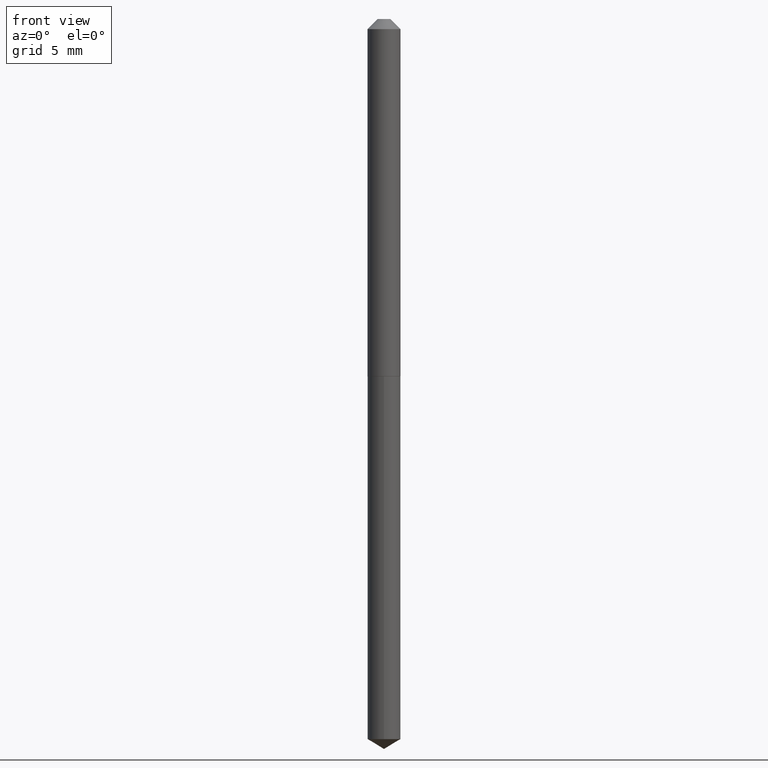
[diagram: clean part render]
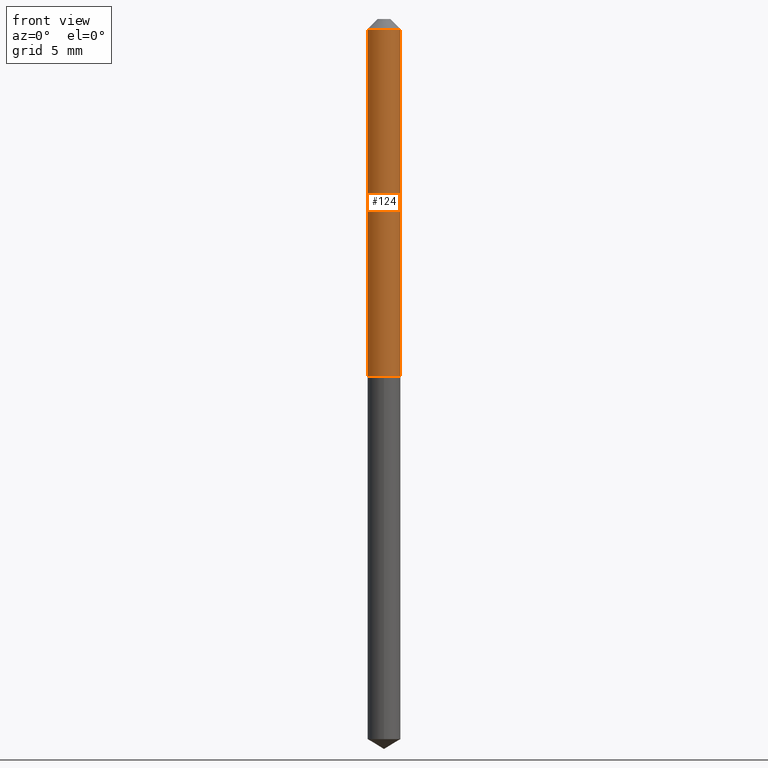
[diagram: same view with one face highlighted and labeled with its STEP entity id]
A machine part, front view. The second image highlights one B-rep face of the part: STEP entity #124.
In plain terms, the highlighted cylindrical surface (edge-blend (fillet) strip) has radius 1.2891 mm, axis along (-0, 0, 1).
Its self-contained STEP definition (entity closure, byte-faithful):
#6 = EDGE_CURVE ( 'NONE', #131, #77, #123, .T. ) ;
#19 = DIRECTION ( 'NONE',  ( 1.000000000000000000, -6.982962677686265922E-15, 4.876176775795935793E-29 ) ) ;
#30 = ORIENTED_EDGE ( 'NONE', *, *, #183, .F. ) ;
#33 = VERTEX_POINT ( 'NONE', #99 ) ;
#50 = CARTESIAN_POINT ( 'NONE',  ( 0.000000000000000000, 0.000000000000000000, 0.000000000000000000 ) ) ;
#52 = CARTESIAN_POINT ( 'NONE',  ( 0.05075000000000014222, -4.198506309958881744E-15, -1.100999999999999979 ) ) ;
#59 = CARTESIAN_POINT ( 'NONE',  ( -0.05075000000000014222, -3.483520515668050958E-15, -1.100999999999999979 ) ) ;
#60 = DIRECTION ( 'NONE',  ( -2.445468806185136597E-29, 3.491481338843145583E-15, 1.000000000000000000 ) ) ;
#73 = VERTEX_POINT ( 'NONE', #59 ) ;
#77 = VERTEX_POINT ( 'NONE', #314 ) ;
#78 = CIRCLE ( 'NONE', #338, 0.05075000000000001732 ) ;
#80 = EDGE_CURVE ( 'NONE', #33, #77, #78, .T. ) ;
#84 = DIRECTION ( 'NONE',  ( -2.445468806185136877E-29, 3.491481338843145188E-15, 1.000000000000000000 ) ) ;
#85 = AXIS2_PLACEMENT_3D ( 'NONE', #206, #108, #93 ) ;
#93 = DIRECTION ( 'NONE',  ( 1.000000000000000000, -6.982962677686270655E-15, 0.000000000000000000 ) ) ;
#99 = CARTESIAN_POINT ( 'NONE',  ( -0.05075000000000001732, -1.616014434554323559E-15, -0.03125000000000021511 ) ) ;
#108 = DIRECTION ( 'NONE',  ( -2.445468806185136597E-29, 3.491481338843145583E-15, 1.000000000000000000 ) ) ;
#123 = LINE ( 'NONE', #375, #305 ) ;
#124 = ADVANCED_FACE ( 'NONE', ( #359 ), #361, .T. ) ;
#131 = VERTEX_POINT ( 'NONE', #52 ) ;
#139 = DIRECTION ( 'NONE',  ( 1.000000000000000000, -6.982962677686265133E-15, 0.000000000000000000 ) ) ;
#140 = AXIS2_PLACEMENT_3D ( 'NONE', #50, #240, #19 ) ;
#151 = DIRECTION ( 'NONE',  ( -2.445468806185136877E-29, 3.491481338843145188E-15, 1.000000000000000000 ) ) ;
#170 = EDGE_CURVE ( 'NONE', #73, #131, #204, .T. ) ;
#183 = EDGE_CURVE ( 'NONE', #73, #33, #230, .T. ) ;
#204 = CIRCLE ( 'NONE', #85, 0.05075000000000014222 ) ;
#206 = CARTESIAN_POINT ( 'NONE',  ( 2.692461155609835411E-29, -3.844120954066303109E-15, -1.100999999999999979 ) ) ;
#215 = ORIENTED_EDGE ( 'NONE', *, *, #80, .F. ) ;
#227 = VECTOR ( 'NONE', #84, 39.37007874015748143 ) ;
#230 = LINE ( 'NONE', #350, #227 ) ;
#240 = DIRECTION ( 'NONE',  ( -2.445468806185136597E-29, 3.491481338843145583E-15, 1.000000000000000000 ) ) ;
#264 = CARTESIAN_POINT ( 'NONE',  ( 7.642090019328603538E-31, -1.091087918388490390E-16, -0.03125000000000021511 ) ) ;
#265 = ORIENTED_EDGE ( 'NONE', *, *, #6, .T. ) ;
#296 = ORIENTED_EDGE ( 'NONE', *, *, #170, .T. ) ;
#305 = VECTOR ( 'NONE', #151, 39.37007874015748143 ) ;
#314 = CARTESIAN_POINT ( 'NONE',  ( 0.05075000000000001732, -4.634941477314271441E-16, -0.03125000000000021511 ) ) ;
#338 = AXIS2_PLACEMENT_3D ( 'NONE', #264, #60, #139 ) ;
#350 = CARTESIAN_POINT ( 'NONE',  ( -0.05075000000000008671, 3.606004383982514604E-16, -2.496359558304368800E-30 ) ) ;
#359 = FACE_OUTER_BOUND ( 'NONE', #368, .T. ) ;
#361 = CYLINDRICAL_SURFACE ( 'NONE', #140, 0.05075000000000008671 ) ;
#368 = EDGE_LOOP ( 'NONE', ( #30, #296, #265, #215 ) ) ;
#375 = CARTESIAN_POINT ( 'NONE',  ( 0.05075000000000008671, -3.543853558925785858E-16, 2.474659713716441605E-30 ) ) ;